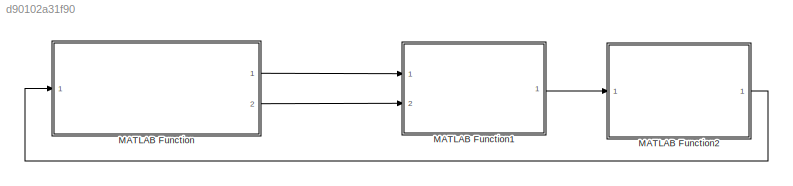
MODEL slx_d90102a31f90
KIND model
CONFIG AbsTol = auto
CONFIG EnableMultiTasking = off
CONFIG FixedStep = auto
CONFIG MaxStep = auto
CONFIG MinStep = auto
CONFIG RelTol = 1e-3
CONFIG SampleTimeConstraint = Unconstrained
CONFIG SolverName = VariableStepAuto
CONFIG StartTime = 0.0
CONFIG StopTime = 10.0
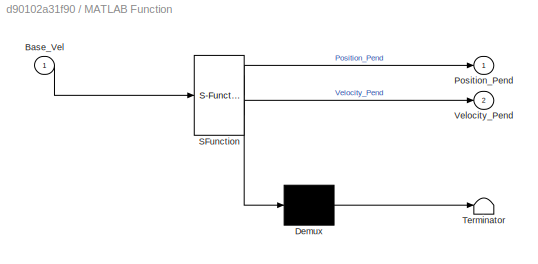
BLOCK [SubSystem] MATLAB Function
  ErrorFcn = Stateflow.Translate.translate
  PermitHierarchicalResolution = ExplicitOnly
  Ports = [1, 2]
  RequestExecContextInheritance = off
  SFBlockType = MATLAB Function
  TreatAsAtomicUnit = on
BLOCK [Demux] MATLAB Function/ Demux 
  Outputs = 1
  Ports = [1, 1]
BLOCK [S-Function] MATLAB Function/ SFunction 
  EnableBusSupport = on
  FunctionName = sf_sfun
  PortCounts = [1 3]
  Ports = [1, 3]
  SFcnIsStateOwnerBlock = off
  SFunctionDeploymentMode = off
  Tag = Stateflow S-Function 2
BLOCK [Terminator] MATLAB Function/ Terminator 
BLOCK [Inport] MATLAB Function/Base_Vel
BLOCK [Outport] MATLAB Function/Position_Pend
BLOCK [Outport] MATLAB Function/Velocity_Pend
  Port = 2
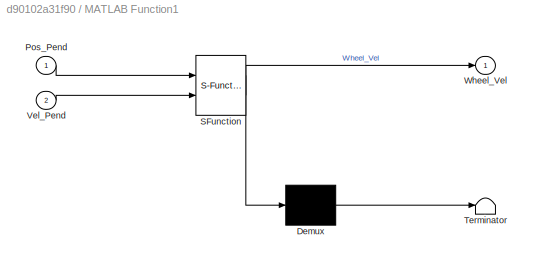
BLOCK [SubSystem] MATLAB Function1
  ErrorFcn = Stateflow.Translate.translate
  PermitHierarchicalResolution = ExplicitOnly
  Ports = [2, 1]
  RequestExecContextInheritance = off
  SFBlockType = MATLAB Function
  TreatAsAtomicUnit = on
BLOCK [Demux] MATLAB Function1/ Demux 
  Outputs = 1
  Ports = [1, 1]
BLOCK [S-Function] MATLAB Function1/ SFunction 
  EnableBusSupport = on
  FunctionName = sf_sfun
  PortCounts = [2 2]
  Ports = [2, 2]
  SFcnIsStateOwnerBlock = off
  SFunctionDeploymentMode = off
  Tag = Stateflow S-Function 1
BLOCK [Terminator] MATLAB Function1/ Terminator 
BLOCK [Inport] MATLAB Function1/Pos_Pend
BLOCK [Inport] MATLAB Function1/Vel_Pend
  Port = 2
BLOCK [Outport] MATLAB Function1/Wheel_Vel
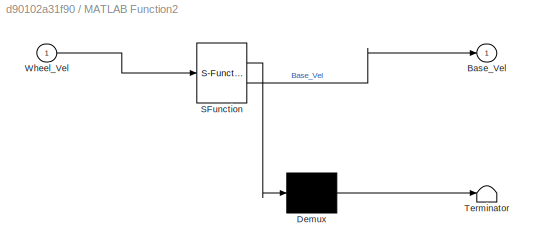
BLOCK [SubSystem] MATLAB Function2
  ErrorFcn = Stateflow.Translate.translate
  PermitHierarchicalResolution = ExplicitOnly
  Ports = [1, 1]
  RequestExecContextInheritance = off
  SFBlockType = MATLAB Function
  TreatAsAtomicUnit = on
BLOCK [Demux] MATLAB Function2/ Demux 
  Outputs = 1
  Ports = [1, 1]
BLOCK [S-Function] MATLAB Function2/ SFunction 
  EnableBusSupport = on
  FunctionName = sf_sfun
  PortCounts = [1 2]
  Ports = [1, 2]
  SFcnIsStateOwnerBlock = off
  SFunctionDeploymentMode = off
  Tag = Stateflow S-Function 3
BLOCK [Terminator] MATLAB Function2/ Terminator 
BLOCK [Outport] MATLAB Function2/Base_Vel
BLOCK [Inport] MATLAB Function2/Wheel_Vel
LINE MATLAB Function1:1 -> MATLAB Function2:1
LINE MATLAB Function2:1 -> MATLAB Function:1
LINE MATLAB Function:1 -> MATLAB Function1:1
LINE MATLAB Function:2 -> MATLAB Function1:2
CHART MATLAB Function1 states=1 transitions=1
  STATE_LABEL 'eML_blk_kernel()'
  STATE_LABEL 'SCRIPT:\nfunction Wheel_Vel = DynamicsModel(Pos_Pend,Vel_Pend)\n    \n    Lc1 = 2.44; %meters from base\n    L1 = 2.5; %m\n    m1 = 19.53; %kg\n    m2 = 10; %kg\n    R = 2; %m \n    \n    I1 = (1/3)*m1*L1^2;\n    I2 = 0.5*m2*R;\n    \n    K1 = 0.5*m1*Lc1^2*Vel_Pend^2 + 0.5*I1*Vel_Pend^2;\n    \n    syms Vel_Wheel\n    \n    K2 = 0.5*m2*L1^2*Vel_Pend^2 + 0.5*I2*(Vel_Pend + Vel_Wheel)^2;\n    \n    Vel_Sol = solve(K2...<+210ch>'
CHART MATLAB Function states=1 transitions=1
  STATE_LABEL 'eML_blk_kernel()'
  STATE_LABEL "SCRIPT:\nfunction [Position_Pend, Velocity_Pend] = SystemResponse(Base_Vel)\n%      while (Base_Vel(1) > 0)\n        disp('Program Started')\n        sim = remApi('remoteApi');\n        sim.simxFinish(-1);\n        clientID = sim.simxStart('127.0.0.1',19997,true,true,5000,5);\n\n        if(clientID > -1)\n            disp('Connected to remote API Server')\n            \n            [res1,Base_Joint] = sim.si...<+1498ch>"
CHART MATLAB Function2 states=1 transitions=1
  STATE_LABEL 'eML_blk_kernel()'
  STATE_LABEL "SCRIPT:\nfunction Base_Vel = Controller(Wheel_Vel)\n    sim = remApi('remoteApi');\n    sim.simxFinish(-1);\n    clientID = sim.simxStart('127.0.0.1',19997,true,true,5000,5);\n    \n    if(clientID > -1)\n        [res,Wheel_Joint] = sim.simxGetObjectHandle(clientID,'WHEEL_JOINT',sim.simx_opmode_blocking);\n        [res2,Pend] = sim.simxGetObjectHandle(clientID,'PENDULUM',sim.simx_opmode_blocking);\n       ...<+408ch>"
CHART  states=0 transitions=0
CHART  states=0 transitions=0
CHART  states=0 transitions=0
